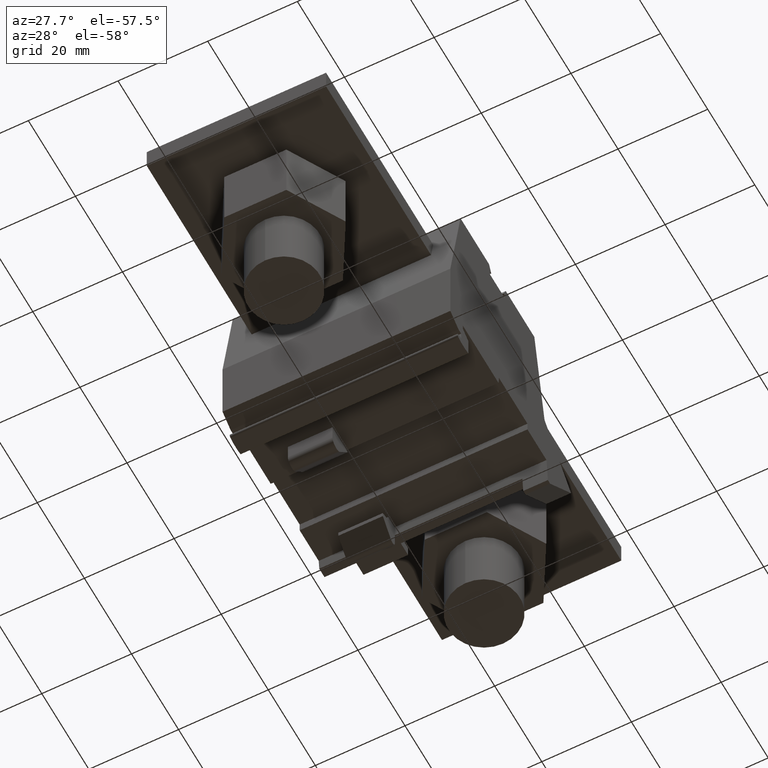
[diagram: clean part render]
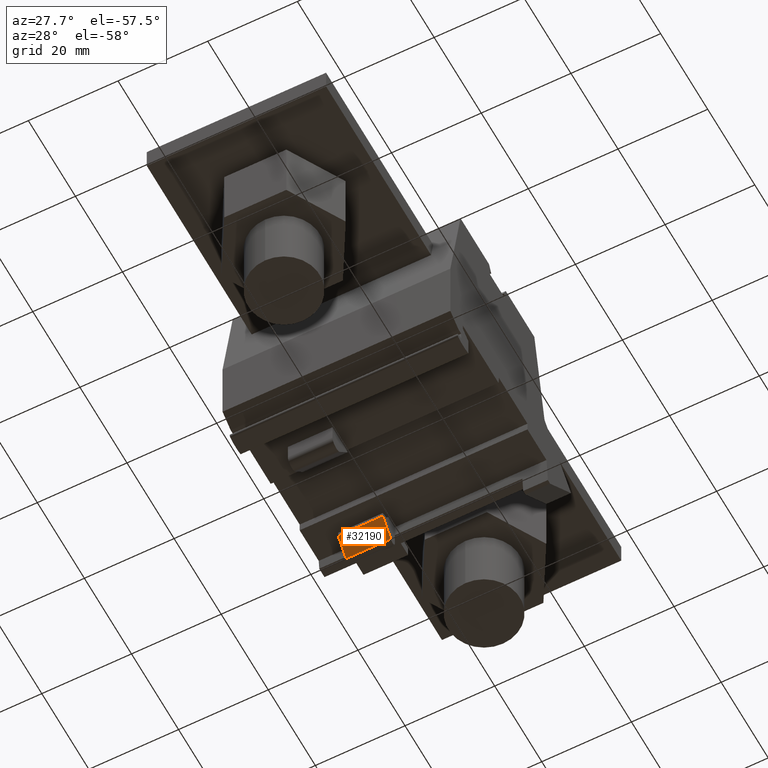
[diagram: same view with one face highlighted and labeled with its STEP entity id]
A machine part, auxiliary view. The second image highlights one B-rep face of the part: STEP entity #32190.
In plain terms, the highlighted planar face has unit normal (0, 0.7453, 0.6667).
Its self-contained STEP definition (entity closure, byte-faithful):
#30460=CARTESIAN_POINT('',(-221.452905570729,725.872502053099,-6.25));
#30470=VERTEX_POINT('',#30460);
#30500=CARTESIAN_POINT('',(-230.859875894457,736.389190691544,-6.25));
#30510=DIRECTION('',(0.666688638445689,-0.745336339760402,0.));
#30520=VECTOR('',#30510,1.);
#30530=LINE('',#30500,#30520);
#30540=CARTESIAN_POINT('',(-224.807569230968,729.622907548953,-6.25));
#30550=VERTEX_POINT('',#30540);
#30560=EDGE_CURVE('',#30550,#30470,#30530,.T.);
#31120=CARTESIAN_POINT('',(-224.807569230968,729.622907548953,-16.2));
#31130=VERTEX_POINT('',#31120);
#31160=CARTESIAN_POINT('',(-224.807569230968,729.622907548953,-16.2));
#31170=DIRECTION('',(0.666688638445689,-0.745336339760402,0.));
#31180=VECTOR('',#31170,1.);
#31190=LINE('',#31160,#31180);
#31200=CARTESIAN_POINT('',(-221.452905570729,725.872502053099,-16.2));
#31210=VERTEX_POINT('',#31200);
#31220=EDGE_CURVE('',#31130,#31210,#31190,.T.);
#31980=CARTESIAN_POINT('',(-224.807569230968,729.622907548953,-16.2));
#31990=DIRECTION('',(0.745336339760402,0.666688638445689,-0.));
#32000=DIRECTION('',(-0.666688638445689,0.745336339760402,0.));
#32010=AXIS2_PLACEMENT_3D('',#31980,#31990,#32000);
#32020=PLANE('',#32010);
#32030=ORIENTED_EDGE('',*,*,#31220,.T.);
#32040=CARTESIAN_POINT('',(-224.807569230968,729.622907548953,24.275));
#32050=DIRECTION('',(0.,0.,1.));
#32060=VECTOR('',#32050,1.);
#32070=LINE('',#32040,#32060);
#32080=EDGE_CURVE('',#31130,#30550,#32070,.T.);
#32090=ORIENTED_EDGE('',*,*,#32080,.F.);
#32100=ORIENTED_EDGE('',*,*,#30560,.F.);
#32110=CARTESIAN_POINT('',(-221.452905570729,725.872502053099,-16.2));
#32120=DIRECTION('',(0.,0.,1.));
#32130=VECTOR('',#32120,1.);
#32140=LINE('',#32110,#32130);
#32150=EDGE_CURVE('',#31210,#30470,#32140,.T.);
#32160=ORIENTED_EDGE('',*,*,#32150,.T.);
#32170=EDGE_LOOP('',(#32160,#32100,#32090,#32030));
#32180=FACE_OUTER_BOUND('',#32170,.T.);
#32190=ADVANCED_FACE('',(#32180),#32020,.F.);